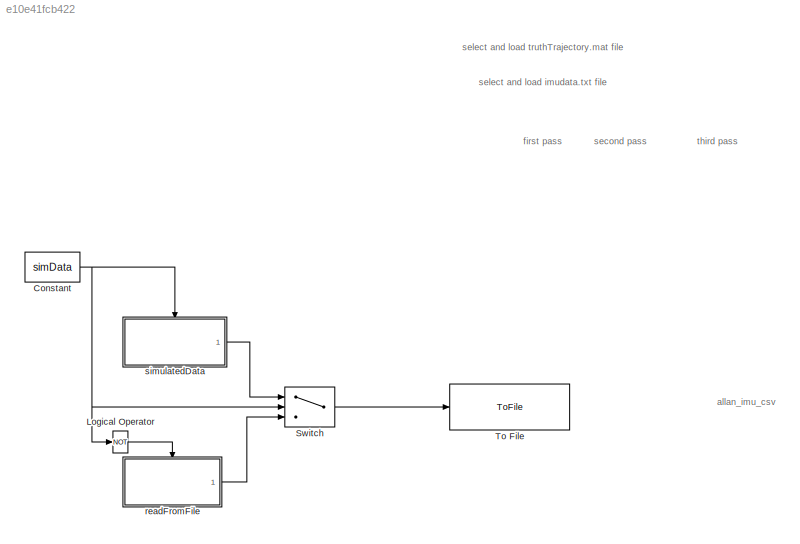
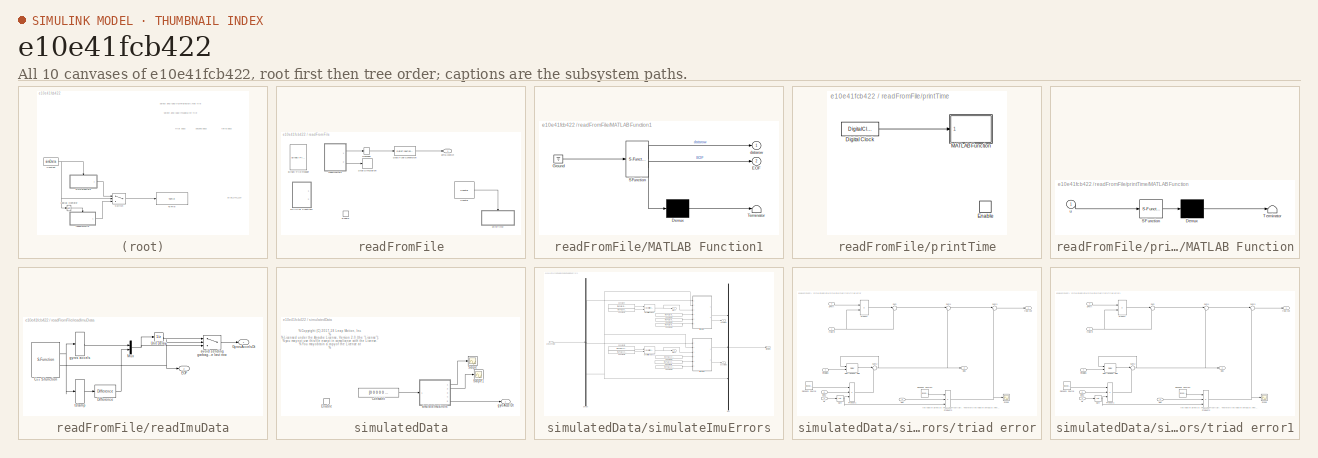
[diagram: thumbnail index - all 10 canvases of the model, root first then tree order]
MODEL slx_e10e41fcb422
KIND model
CONFIG AbsTol = auto
CONFIG EnableMultiTasking = off
CONFIG FixedStep = 1/Fs
CONFIG MaxStep = auto
CONFIG MinStep = auto
CONFIG PreLoadFcn = modelDef = getModelDef();\nload VINS_bus_definitions.mat;\n\nFs = 1125;  % nominal IMU sampling rate (Hz)\n\ngyroCalBiases = [0;0;0];\ngyroCalMatrix = eye(3);\ngyroGsensMatrix = zeros(3,3);\n\naccelCalBiases = [0;0;0];\naccelCalMatrix = eye(3);\n\nimuPar = getImuPar('lmvpUncalibrated');\n\nlastUsedMgyr = zeros(3,3);\n\nsimData = true;\n\n
CONFIG RelTol = 1e-3
CONFIG SampleTimeConstraint = Unconstrained
CONFIG Solver = FixedStepDiscrete
CONFIG SolverName = FixedStepDiscrete
CONFIG StartTime = 0.0
CONFIG StopTime = inf
BLOCK [Constant] Constant
  Value = simData
BLOCK [Logic] Logical Operator
  AllPortsSameDT = off
  IconShape = distinctive
  Operator = NOT
  OutDataTypeStr = boolean
  Ports = [1, 1]
BLOCK [Switch] Switch
  Criteria = u2 > Threshold
  InputSameDT = off
  SaturateOnIntegerOverflow = off
  Threshold = 0.5
BLOCK [ToFile] To File
  Filename = simImuData.mat
  MatrixName = simImuData
  Ports = [1]
BLOCK [SubSystem] readFromFile
  Ports = [0, 1, 1]
  RequestExecContextInheritance = off
BLOCK [Reference] readFromFile/Binary File Reader  REF=dspsrcs4/Binary File Reader
  Commented = on
  Ports = [0, 2]
  SourceBlock = dspsrcs4/Binary File Reader
  SourceProductBaseCode = DS
  SourceProductName = DSP System Toolbox
  SourceType = dsp.simulink.BinaryFileReader
BLOCK [Reference] readFromFile/Counter  REF=dspswit3/Counter
  Ports = [0, 1]
  SourceBlock = dspswit3/Counter
  SourceProductBaseCode = DS
  SourceProductName = DSP System Toolbox
  SourceType = Counter
BLOCK [DataTypeConversion] readFromFile/Data Type Conversion
  OutDataTypeStr = double
  RndMeth = Floor
  SaturateOnIntegerOverflow = off
BLOCK [EnablePort] readFromFile/Enable
  Ports = []
BLOCK [SubSystem] readFromFile/MATLAB Function1
  Commented = on
  ErrorFcn = Stateflow.Translate.translate
  PermitHierarchicalResolution = ExplicitOnly
  Ports = [0, 2]
  RequestExecContextInheritance = off
  SFBlockType = MATLAB Function
  TreatAsAtomicUnit = on
BLOCK [Demux] readFromFile/MATLAB Function1/ Demux 
  Outputs = 1
  Ports = [1, 1]
BLOCK [Ground] readFromFile/MATLAB Function1/ Ground 
BLOCK [S-Function] readFromFile/MATLAB Function1/ SFunction 
  EnableBusSupport = off
  FunctionName = sf_sfun
  PortCounts = [1 3]
  Ports = [1, 3]
  SFcnIsStateOwnerBlock = off
  SFunctionDeploymentMode = off
  Tag = Stateflow S-Function testAllanVar 18
BLOCK [Terminator] readFromFile/MATLAB Function1/ Terminator 
BLOCK [Outport] readFromFile/MATLAB Function1/EOF
  IconDisplay = Port number
  Port = 2
BLOCK [Outport] readFromFile/MATLAB Function1/datarow
  IconDisplay = Port number
BLOCK [Reshape] readFromFile/Reshape
  OutputDimensionality = Column vector (2-D)
  Ports = [1, 1]
BLOCK [Stop] readFromFile/Stop Simulation
BLOCK [Outport] readFromFile/gyroAccelDt
  IconDisplay = Port number
BLOCK [SubSystem] readFromFile/printTime
  Ports = [0, 0, 1]
  RequestExecContextInheritance = off
BLOCK [DigitalClock] readFromFile/printTime/Digital Clock
  SampleTime = 1/Fs
BLOCK [EnablePort] readFromFile/printTime/Enable
  Ports = []
BLOCK [SubSystem] readFromFile/printTime/MATLAB Function
  ErrorFcn = Stateflow.Translate.translate
  PermitHierarchicalResolution = ExplicitOnly
  Ports = [1]
  RequestExecContextInheritance = off
  SFBlockType = MATLAB Function
  TreatAsAtomicUnit = on
BLOCK [Demux] readFromFile/printTime/MATLAB Function/ Demux 
  Outputs = 1
  Ports = [1, 1]
BLOCK [S-Function] readFromFile/printTime/MATLAB Function/ SFunction 
  EnableBusSupport = off
  FunctionName = sf_sfun
  PortCounts = [1 1]
  Ports = [1, 1]
  SFcnIsStateOwnerBlock = off
  SFunctionDeploymentMode = off
  Tag = Stateflow S-Function testAllanVar 11
BLOCK [Terminator] readFromFile/printTime/MATLAB Function/ Terminator 
BLOCK [Inport] readFromFile/printTime/MATLAB Function/u
  IconDisplay = Port number
BLOCK [SubSystem] readFromFile/readImuData
  Ports = [0, 2]
  RequestExecContextInheritance = off
BLOCK [S-Function] readFromFile/readImuData/C++ S-function
  EnableBusSupport = off
  FunctionName = readImuData
  Parameters = 1/Fs
  Ports = [0, 2]
  SFcnIsStateOwnerBlock = off
  SFunctionDeploymentMode = off
BLOCK [Reference] readFromFile/readImuData/Difference  REF=simulink/Discrete/Difference
  Ports = [1, 1]
  SourceBlock = simulink/Discrete/Difference
  SourceProductBaseCode = SL
  SourceProductName = Simulink
  SourceType = Difference
BLOCK [Outport] readFromFile/readImuData/EOF
  IconDisplay = Port number
  Port = 2
BLOCK [Outport] readFromFile/readImuData/GyrosAccelsDt
  IconDisplay = Port number
BLOCK [Mux] readFromFile/readImuData/Mux
  DisplayOption = bar
  Inputs = 2
  Ports = [2, 1]
BLOCK [UnitDelay] readFromFile/readImuData/Unit Delay
  InputProcessing = Elements as channels (sample based)
  SampleTime = -1
BLOCK [Switch] readFromFile/readImuData/avoid sending garbage on the last row
  Criteria = u2 > Threshold
  InputSameDT = off
  SaturateOnIntegerOverflow = off
  Threshold = 0.5
BLOCK [Selector] readFromFile/readImuData/gyros accels
  IndexOptions = Index vector (dialog)
  Indices = [4:9]
  InputPortWidth = 10
  OutputSizes = 1
  Ports = [1, 1]
BLOCK [Selector] readFromFile/readImuData/tstamp
  IndexOptions = Index vector (dialog)
  Indices = 3
  InputPortWidth = 10
  OutputSizes = 1
  Ports = [1, 1]
BLOCK [SubSystem] simulatedData
  Ports = [0, 1, 1]
  RequestExecContextInheritance = off
BLOCK [Constant] simulatedData/Constant
  SampleTime = 1/Fs
  Value = [0 0 0 0 0 -9.80665 1/Fs]
BLOCK [EnablePort] simulatedData/Enable
  Ports = []
BLOCK [Scope] simulatedData/Scope
  Floating = off
  NumInputPorts = 1
  Ports = [1]
  ScopeSpecificationString = Simulink.scopes.TimeScopeBlockCfg('CurrentConfiguration', extmgr.ConfigurationSet(extmgr.Configuration('Core','General UI',true),extmgr.Configuration('Core','Source UI',true),extmgr.Configuration('Sources','WiredSimulink',true,'DataLoggingVariableName','ScopeData2'),extmgr.Configuration('Visuals','Time Domain',true,'SerializedDisplays',{struct('MinYLimReal','-0.00711','MaxYLimReal','0.01722','YLab...<+1472ch>
BLOCK [Scope] simulatedData/Scope1
  Floating = off
  NumInputPorts = 1
  Ports = [1]
  ScopeSpecificationString = Simulink.scopes.TimeScopeBlockCfg('CurrentConfiguration', extmgr.ConfigurationSet(extmgr.Configuration('Core','General UI',true),extmgr.Configuration('Core','Source UI',true),extmgr.Configuration('Sources','WiredSimulink',true),extmgr.Configuration('Visuals','Time Domain',true,'SerializedDisplays',{struct('MinYLimReal','-0.00711','MaxYLimReal','0.01722','YLabelReal','','MinYLimMag','0.00000','MaxY...<+1433ch>
BLOCK [Outport] simulatedData/gyroAccelDt 
  IconDisplay = Port number
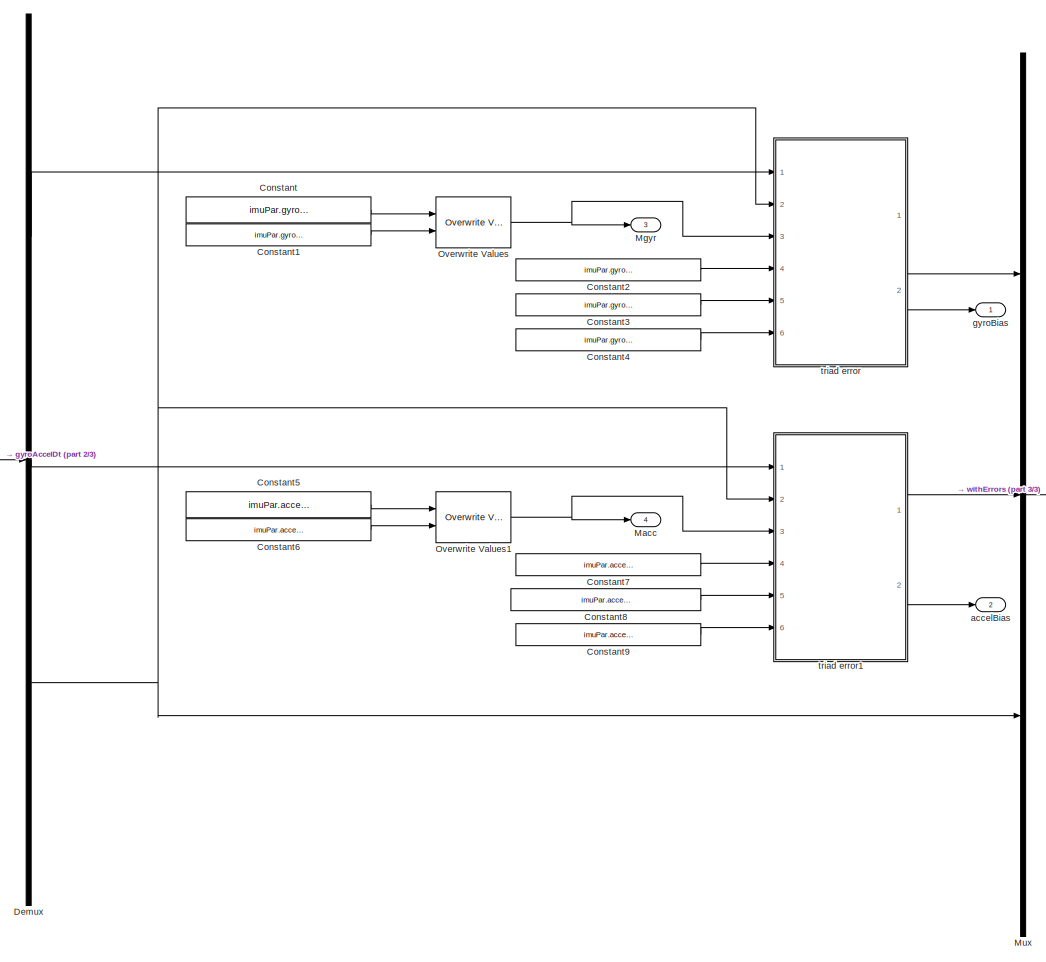
[diagram: simulatedData/simulateImuErrors - part 1/3, center side, full height]
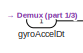
[diagram: simulatedData/simulateImuErrors - part 2/3, middle left region]
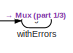
[diagram: simulatedData/simulateImuErrors - part 3/3, middle right region]
BLOCK [SubSystem] simulatedData/simulateImuErrors
  Ports = [1, 5]
  RequestExecContextInheritance = off
  TreatAsAtomicUnit = on
BLOCK [Constant] simulatedData/simulateImuErrors/Constant
  Value = imuPar.gyroAlignUncert * randn(3,3)
BLOCK [Constant] simulatedData/simulateImuErrors/Constant1
  Value = imuPar.gyroScaleUncert*randn(3,1)
BLOCK [Constant] simulatedData/simulateImuErrors/Constant2
  Value = imuPar.gyroBiasUncert*randn(3,1)
  VectorParams1D = off
BLOCK [Constant] simulatedData/simulateImuErrors/Constant3
  Value = imuPar.gyroBrwRadPerSecPerRtSec
BLOCK [Constant] simulatedData/simulateImuErrors/Constant4
  Value = imuPar.gyroArwRadPerRtSec
BLOCK [Constant] simulatedData/simulateImuErrors/Constant5
  Value = imuPar.accelAlignUncert * randn(3,3)
BLOCK [Constant] simulatedData/simulateImuErrors/Constant6
  Value = imuPar.accelScaleUncert*randn(3,1)
BLOCK [Constant] simulatedData/simulateImuErrors/Constant7
  Value = imuPar.accelBiasUncert*randn(3,1)
  VectorParams1D = off
BLOCK [Constant] simulatedData/simulateImuErrors/Constant8
  Value = imuPar.accelBrwMetersPerSec2PerRtSec
BLOCK [Constant] simulatedData/simulateImuErrors/Constant9
  Value = imuPar.accelVrwMetersPerSecPerRtSec
BLOCK [Demux] simulatedData/simulateImuErrors/Demux
  DisplayOption = bar
  Outputs = [3 3 1]
  Ports = [1, 3]
BLOCK [Outport] simulatedData/simulateImuErrors/Macc
  IconDisplay = Port number
  Port = 4
BLOCK [Outport] simulatedData/simulateImuErrors/Mgyr
  IconDisplay = Port number
  Port = 3
BLOCK [Mux] simulatedData/simulateImuErrors/Mux
  DisplayOption = bar
  Inputs = 3
  Ports = [3, 1]
BLOCK [Reference] simulatedData/simulateImuErrors/Overwrite Values  REF=dspmtrx3/Overwrite Values
  Ports = [2, 1]
  SourceBlock = dspmtrx3/Overwrite Values
  SourceProductBaseCode = DS
  SourceProductName = DSP System Toolbox
  SourceType = Overwrite Values
BLOCK [Reference] simulatedData/simulateImuErrors/Overwrite Values1  REF=dspmtrx3/Overwrite Values
  Ports = [2, 1]
  SourceBlock = dspmtrx3/Overwrite Values
  SourceProductBaseCode = DS
  SourceProductName = DSP System Toolbox
  SourceType = Overwrite Values
BLOCK [Outport] simulatedData/simulateImuErrors/accelBias
  IconDisplay = Port number
  Port = 2
BLOCK [Inport] simulatedData/simulateImuErrors/gyroAccelDt
  IconDisplay = Port number
BLOCK [Outport] simulatedData/simulateImuErrors/gyroBias
  IconDisplay = Port number
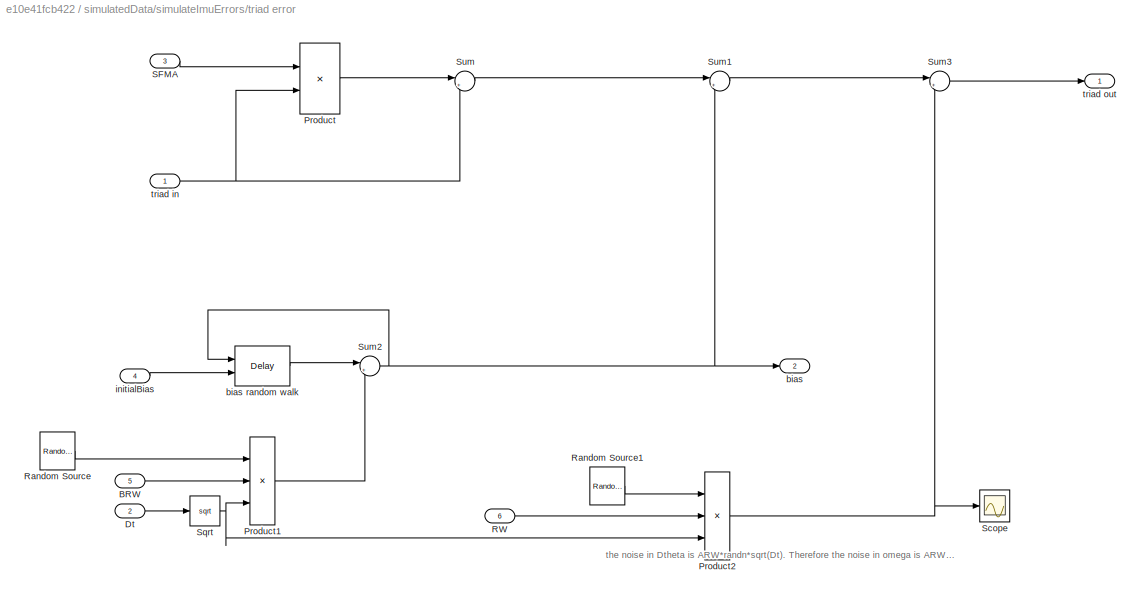
BLOCK [SubSystem] simulatedData/simulateImuErrors/triad error
  Ports = [6, 2]
  RequestExecContextInheritance = off
  TreatAsAtomicUnit = on
BLOCK [Inport] simulatedData/simulateImuErrors/triad error/BRW
  IconDisplay = Port number
  Port = 5
BLOCK [Inport] simulatedData/simulateImuErrors/triad error/Dt
  IconDisplay = Port number
  Port = 2
BLOCK [Product] simulatedData/simulateImuErrors/triad error/Product
  InputSameDT = off
  Multiplication = Matrix(*)
  OutDataTypeStr = Inherit: Inherit via internal rule
  Ports = [2, 1]
  RndMeth = Floor
  SaturateOnIntegerOverflow = off
BLOCK [Product] simulatedData/simulateImuErrors/triad error/Product1
  InputSameDT = off
  Inputs = 3
  OutDataTypeStr = Inherit: Inherit via internal rule
  Ports = [3, 1]
  RndMeth = Floor
  SaturateOnIntegerOverflow = off
BLOCK [Product] simulatedData/simulateImuErrors/triad error/Product2
  InputSameDT = off
  Inputs = **/
  OutDataTypeStr = Inherit: Inherit via internal rule
  Ports = [3, 1]
  RndMeth = Floor
  SaturateOnIntegerOverflow = off
BLOCK [Inport] simulatedData/simulateImuErrors/triad error/RW
  IconDisplay = Port number
  Port = 6
BLOCK [Reference] simulatedData/simulateImuErrors/triad error/Random Source  REF=dspsrcs4/Random
Source
  Ports = [0, 1]
  SourceBlock = dspsrcs4/Random\nSource
  SourceProductBaseCode = DS
  SourceProductName = DSP System Toolbox
  SourceType = Random Source
  UserDataPersistent = on
BLOCK [Reference] simulatedData/simulateImuErrors/triad error/Random Source1  REF=dspsrcs4/Random
Source
  Ports = [0, 1]
  SourceBlock = dspsrcs4/Random\nSource
  SourceProductBaseCode = DS
  SourceProductName = DSP System Toolbox
  SourceType = Random Source
  UserDataPersistent = on
BLOCK [Inport] simulatedData/simulateImuErrors/triad error/SFMA
  IconDisplay = Port number
  Port = 3
BLOCK [Scope] simulatedData/simulateImuErrors/triad error/Scope
  Floating = off
  NumInputPorts = 1
  Ports = [1]
  ScopeSpecificationString = Simulink.scopes.TimeScopeBlockCfg('CurrentConfiguration', extmgr.ConfigurationSet(extmgr.Configuration('Core','General UI',true),extmgr.Configuration('Core','Source UI',true),extmgr.Configuration('Sources','WiredSimulink',true,'DataLoggingVariableName','ScopeData3'),extmgr.Configuration('Visuals','Time Domain',true,'SerializedDisplays',{struct('MinYLimReal','-0.01032','MaxYLimReal','0.01092','YLab...<+1449ch>
BLOCK [Sqrt] simulatedData/simulateImuErrors/triad error/Sqrt
BLOCK [Sum] simulatedData/simulateImuErrors/triad error/Sum
  IconShape = round
  InputSameDT = off
  Inputs = |++
  OutDataTypeStr = Inherit: Inherit via internal rule
  Ports = [2, 1]
  SaturateOnIntegerOverflow = off
BLOCK [Sum] simulatedData/simulateImuErrors/triad error/Sum1
  IconShape = round
  InputSameDT = off
  Inputs = |++
  OutDataTypeStr = Inherit: Inherit via internal rule
  Ports = [2, 1]
  SaturateOnIntegerOverflow = off
BLOCK [Sum] simulatedData/simulateImuErrors/triad error/Sum2
  IconShape = round
  InputSameDT = off
  Inputs = |++
  OutDataTypeStr = Inherit: Inherit via internal rule
  Ports = [2, 1]
  SaturateOnIntegerOverflow = off
BLOCK [Sum] simulatedData/simulateImuErrors/triad error/Sum3
  IconShape = round
  InputSameDT = off
  Inputs = |++
  OutDataTypeStr = Inherit: Inherit via internal rule
  Ports = [2, 1]
  SaturateOnIntegerOverflow = off
BLOCK [Outport] simulatedData/simulateImuErrors/triad error/bias
  IconDisplay = Port number
  Port = 2
BLOCK [Delay] simulatedData/simulateImuErrors/triad error/bias random walk
  DelayLength = 1
  InitialConditionSource = Input port
  InputPortMap = u0,p4
  Ports = [2, 1]
BLOCK [Inport] simulatedData/simulateImuErrors/triad error/initialBias
  IconDisplay = Port number
  Port = 4
BLOCK [Inport] simulatedData/simulateImuErrors/triad error/triad in
  IconDisplay = Port number
BLOCK [Outport] simulatedData/simulateImuErrors/triad error/triad out
  IconDisplay = Port number
BLOCK [SubSystem] simulatedData/simulateImuErrors/triad error1
  Ports = [6, 2]
  RequestExecContextInheritance = off
  TreatAsAtomicUnit = on
BLOCK [Inport] simulatedData/simulateImuErrors/triad error1/BRW
  IconDisplay = Port number
  Port = 5
BLOCK [Inport] simulatedData/simulateImuErrors/triad error1/Dt
  IconDisplay = Port number
  Port = 2
BLOCK [Product] simulatedData/simulateImuErrors/triad error1/Product
  InputSameDT = off
  Multiplication = Matrix(*)
  OutDataTypeStr = Inherit: Inherit via internal rule
  Ports = [2, 1]
  RndMeth = Floor
  SaturateOnIntegerOverflow = off
BLOCK [Product] simulatedData/simulateImuErrors/triad error1/Product1
  InputSameDT = off
  Inputs = 3
  OutDataTypeStr = Inherit: Inherit via internal rule
  Ports = [3, 1]
  RndMeth = Floor
  SaturateOnIntegerOverflow = off
BLOCK [Product] simulatedData/simulateImuErrors/triad error1/Product2
  InputSameDT = off
  Inputs = **/
  OutDataTypeStr = Inherit: Inherit via internal rule
  Ports = [3, 1]
  RndMeth = Floor
  SaturateOnIntegerOverflow = off
BLOCK [Inport] simulatedData/simulateImuErrors/triad error1/RW
  IconDisplay = Port number
  Port = 6
BLOCK [Reference] simulatedData/simulateImuErrors/triad error1/Random Source  REF=dspsrcs4/Random
Source
  Ports = [0, 1]
  SourceBlock = dspsrcs4/Random\nSource
  SourceProductBaseCode = DS
  SourceProductName = DSP System Toolbox
  SourceType = Random Source
  UserDataPersistent = on
BLOCK [Reference] simulatedData/simulateImuErrors/triad error1/Random Source1  REF=dspsrcs4/Random
Source
  Ports = [0, 1]
  SourceBlock = dspsrcs4/Random\nSource
  SourceProductBaseCode = DS
  SourceProductName = DSP System Toolbox
  SourceType = Random Source
  UserDataPersistent = on
BLOCK [Inport] simulatedData/simulateImuErrors/triad error1/SFMA
  IconDisplay = Port number
  Port = 3
BLOCK [Scope] simulatedData/simulateImuErrors/triad error1/Scope
  Floating = off
  NumInputPorts = 1
  Ports = [1]
  ScopeSpecificationString = Simulink.scopes.TimeScopeBlockCfg('CurrentConfiguration', extmgr.ConfigurationSet(extmgr.Configuration('Core','General UI',true),extmgr.Configuration('Core','Source UI',true),extmgr.Configuration('Sources','WiredSimulink',true,'DataLoggingVariableName','ScopeData3'),extmgr.Configuration('Visuals','Time Domain',true,'SerializedDisplays',{struct('MinYLimReal','-0.03085','MaxYLimReal','0.03213','YLab...<+1449ch>
BLOCK [Sqrt] simulatedData/simulateImuErrors/triad error1/Sqrt
BLOCK [Sum] simulatedData/simulateImuErrors/triad error1/Sum
  IconShape = round
  InputSameDT = off
  Inputs = |++
  OutDataTypeStr = Inherit: Inherit via internal rule
  Ports = [2, 1]
  SaturateOnIntegerOverflow = off
BLOCK [Sum] simulatedData/simulateImuErrors/triad error1/Sum1
  IconShape = round
  InputSameDT = off
  Inputs = |++
  OutDataTypeStr = Inherit: Inherit via internal rule
  Ports = [2, 1]
  SaturateOnIntegerOverflow = off
BLOCK [Sum] simulatedData/simulateImuErrors/triad error1/Sum2
  IconShape = round
  InputSameDT = off
  Inputs = |++
  OutDataTypeStr = Inherit: Inherit via internal rule
  Ports = [2, 1]
  SaturateOnIntegerOverflow = off
BLOCK [Sum] simulatedData/simulateImuErrors/triad error1/Sum3
  IconShape = round
  InputSameDT = off
  Inputs = |++
  OutDataTypeStr = Inherit: Inherit via internal rule
  Ports = [2, 1]
  SaturateOnIntegerOverflow = off
BLOCK [Outport] simulatedData/simulateImuErrors/triad error1/bias
  IconDisplay = Port number
  Port = 2
BLOCK [Delay] simulatedData/simulateImuErrors/triad error1/bias random walk
  DelayLength = 1
  InitialConditionSource = Input port
  InputPortMap = u0,p4
  Ports = [2, 1]
BLOCK [Inport] simulatedData/simulateImuErrors/triad error1/initialBias
  IconDisplay = Port number
  Port = 4
BLOCK [Inport] simulatedData/simulateImuErrors/triad error1/triad in
  IconDisplay = Port number
BLOCK [Outport] simulatedData/simulateImuErrors/triad error1/triad out
  IconDisplay = Port number
BLOCK [Outport] simulatedData/simulateImuErrors/withErrors
  IconDisplay = Port number
  Port = 5
ANNOTATION (root): allan_imu_csv
ANNOTATION (root): first pass
ANNOTATION (root): second pass
ANNOTATION (root): select and load imudata.txt file
ANNOTATION (root): select and load truthTrajectory.mat file
ANNOTATION (root): third pass
ANNOTATION simulatedData: % <copyright redacted>
ANNOTATION simulatedData/simulateImuErrors/triad error: the noise in Dtheta is ARW*randn*sqrt(Dt). Therefore the noise in omega is ARW*randn/sqrt(Dt).
ANNOTATION simulatedData/simulateImuErrors/triad error1: the noise in Dtheta is ARW*randn*sqrt(Dt). Therefore the noise in omega is ARW*randn/sqrt(Dt).
NET Constant:1 -> Logical Operator:1, Switch:2, simulatedData:enable
LINE Logical Operator:1 -> readFromFile:enable
LINE Switch:1 -> To File:1
LINE readFromFile/Counter:1 -> readFromFile/printTime:enable
LINE readFromFile/Data Type Conversion:1 -> readFromFile/gyroAccelDt:1
LINE readFromFile/Reshape:1 -> readFromFile/Data Type Conversion:1
LINE readFromFile/printTime/Digital Clock:1 -> readFromFile/printTime/MATLAB Function:1
NET readFromFile/readImuData/C++ S-function:1 -> readFromFile/readImuData/gyros accels:1, readFromFile/readImuData/tstamp:1
NET readFromFile/readImuData/C++ S-function:2 -> readFromFile/readImuData/EOF:1, readFromFile/readImuData/avoid sending garbage on the last row:2
LINE readFromFile/readImuData/Difference:1 -> readFromFile/readImuData/Mux:2
NET readFromFile/readImuData/Mux:1 -> readFromFile/readImuData/Unit Delay:1, readFromFile/readImuData/avoid sending garbage on the last row:3
LINE readFromFile/readImuData/Unit Delay:1 -> readFromFile/readImuData/avoid sending garbage on the last row:1
LINE readFromFile/readImuData/avoid sending garbage on the last row:1 -> readFromFile/readImuData/GyrosAccelsDt:1
LINE readFromFile/readImuData/gyros accels:1 -> readFromFile/readImuData/Mux:1
LINE readFromFile/readImuData/tstamp:1 -> readFromFile/readImuData/Difference:1
LINE readFromFile/readImuData:1 -> readFromFile/Reshape:1
LINE readFromFile/readImuData:2 -> readFromFile/Stop Simulation:1
LINE readFromFile:1 -> Switch:3
LINE simulatedData/Constant:1 -> simulatedData/simulateImuErrors:1
LINE simulatedData/simulateImuErrors/Constant1:1 -> simulatedData/simulateImuErrors/Overwrite Values:2
LINE simulatedData/simulateImuErrors/Constant2:1 -> simulatedData/simulateImuErrors/triad error:4
LINE simulatedData/simulateImuErrors/Constant3:1 -> simulatedData/simulateImuErrors/triad error:5
LINE simulatedData/simulateImuErrors/Constant4:1 -> simulatedData/simulateImuErrors/triad error:6
LINE simulatedData/simulateImuErrors/Constant5:1 -> simulatedData/simulateImuErrors/Overwrite Values1:1
LINE simulatedData/simulateImuErrors/Constant6:1 -> simulatedData/simulateImuErrors/Overwrite Values1:2
LINE simulatedData/simulateImuErrors/Constant7:1 -> simulatedData/simulateImuErrors/triad error1:4
LINE simulatedData/simulateImuErrors/Constant8:1 -> simulatedData/simulateImuErrors/triad error1:5
LINE simulatedData/simulateImuErrors/Constant9:1 -> simulatedData/simulateImuErrors/triad error1:6
LINE simulatedData/simulateImuErrors/Constant:1 -> simulatedData/simulateImuErrors/Overwrite Values:1
LINE simulatedData/simulateImuErrors/Demux:1 -> simulatedData/simulateImuErrors/triad error:1
LINE simulatedData/simulateImuErrors/Demux:2 -> simulatedData/simulateImuErrors/triad error1:1
NET simulatedData/simulateImuErrors/Demux:3 -> simulatedData/simulateImuErrors/Mux:3, simulatedData/simulateImuErrors/triad error1:2, simulatedData/simulateImuErrors/triad error:2
LINE simulatedData/simulateImuErrors/Mux:1 -> simulatedData/simulateImuErrors/withErrors:1
NET simulatedData/simulateImuErrors/Overwrite Values1:1 -> simulatedData/simulateImuErrors/Macc:1, simulatedData/simulateImuErrors/triad error1:3
NET simulatedData/simulateImuErrors/Overwrite Values:1 -> simulatedData/simulateImuErrors/Mgyr:1, simulatedData/simulateImuErrors/triad error:3
LINE simulatedData/simulateImuErrors/gyroAccelDt:1 -> simulatedData/simulateImuErrors/Demux:1
LINE simulatedData/simulateImuErrors/triad error/BRW:1 -> simulatedData/simulateImuErrors/triad error/Product1:2
LINE simulatedData/simulateImuErrors/triad error/Dt:1 -> simulatedData/simulateImuErrors/triad error/Sqrt:1
LINE simulatedData/simulateImuErrors/triad error/Product1:1 -> simulatedData/simulateImuErrors/triad error/Sum2:2
NET simulatedData/simulateImuErrors/triad error/Product2:1 -> simulatedData/simulateImuErrors/triad error/Scope:1, simulatedData/simulateImuErrors/triad error/Sum3:2
LINE simulatedData/simulateImuErrors/triad error/Product:1 -> simulatedData/simulateImuErrors/triad error/Sum:1
LINE simulatedData/simulateImuErrors/triad error/RW:1 -> simulatedData/simulateImuErrors/triad error/Product2:2
LINE simulatedData/simulateImuErrors/triad error/Random Source1:1 -> simulatedData/simulateImuErrors/triad error/Product2:1
LINE simulatedData/simulateImuErrors/triad error/Random Source:1 -> simulatedData/simulateImuErrors/triad error/Product1:1
LINE simulatedData/simulateImuErrors/triad error/SFMA:1 -> simulatedData/simulateImuErrors/triad error/Product:1
NET simulatedData/simulateImuErrors/triad error/Sqrt:1 -> simulatedData/simulateImuErrors/triad error/Product1:3, simulatedData/simulateImuErrors/triad error/Product2:3
LINE simulatedData/simulateImuErrors/triad error/Sum1:1 -> simulatedData/simulateImuErrors/triad error/Sum3:1
NET simulatedData/simulateImuErrors/triad error/Sum2:1 -> simulatedData/simulateImuErrors/triad error/Sum1:2, simulatedData/simulateImuErrors/triad error/bias random walk:1, simulatedData/simulateImuErrors/triad error/bias:1
LINE simulatedData/simulateImuErrors/triad error/Sum3:1 -> simulatedData/simulateImuErrors/triad error/triad out:1
LINE simulatedData/simulateImuErrors/triad error/Sum:1 -> simulatedData/simulateImuErrors/triad error/Sum1:1
LINE simulatedData/simulateImuErrors/triad error/bias random walk:1 -> simulatedData/simulateImuErrors/triad error/Sum2:1
LINE simulatedData/simulateImuErrors/triad error/initialBias:1 -> simulatedData/simulateImuErrors/triad error/bias random walk:2
NET simulatedData/simulateImuErrors/triad error/triad in:1 -> simulatedData/simulateImuErrors/triad error/Product:2, simulatedData/simulateImuErrors/triad error/Sum:2
LINE simulatedData/simulateImuErrors/triad error1/BRW:1 -> simulatedData/simulateImuErrors/triad error1/Product1:2
LINE simulatedData/simulateImuErrors/triad error1/Dt:1 -> simulatedData/simulateImuErrors/triad error1/Sqrt:1
LINE simulatedData/simulateImuErrors/triad error1/Product1:1 -> simulatedData/simulateImuErrors/triad error1/Sum2:2
NET simulatedData/simulateImuErrors/triad error1/Product2:1 -> simulatedData/simulateImuErrors/triad error1/Scope:1, simulatedData/simulateImuErrors/triad error1/Sum3:2
LINE simulatedData/simulateImuErrors/triad error1/Product:1 -> simulatedData/simulateImuErrors/triad error1/Sum:1
LINE simulatedData/simulateImuErrors/triad error1/RW:1 -> simulatedData/simulateImuErrors/triad error1/Product2:2
LINE simulatedData/simulateImuErrors/triad error1/Random Source1:1 -> simulatedData/simulateImuErrors/triad error1/Product2:1
LINE simulatedData/simulateImuErrors/triad error1/Random Source:1 -> simulatedData/simulateImuErrors/triad error1/Product1:1
LINE simulatedData/simulateImuErrors/triad error1/SFMA:1 -> simulatedData/simulateImuErrors/triad error1/Product:1
NET simulatedData/simulateImuErrors/triad error1/Sqrt:1 -> simulatedData/simulateImuErrors/triad error1/Product1:3, simulatedData/simulateImuErrors/triad error1/Product2:3
LINE simulatedData/simulateImuErrors/triad error1/Sum1:1 -> simulatedData/simulateImuErrors/triad error1/Sum3:1
NET simulatedData/simulateImuErrors/triad error1/Sum2:1 -> simulatedData/simulateImuErrors/triad error1/Sum1:2, simulatedData/simulateImuErrors/triad error1/bias random walk:1, simulatedData/simulateImuErrors/triad error1/bias:1
LINE simulatedData/simulateImuErrors/triad error1/Sum3:1 -> simulatedData/simulateImuErrors/triad error1/triad out:1
LINE simulatedData/simulateImuErrors/triad error1/Sum:1 -> simulatedData/simulateImuErrors/triad error1/Sum1:1
LINE simulatedData/simulateImuErrors/triad error1/bias random walk:1 -> simulatedData/simulateImuErrors/triad error1/Sum2:1
LINE simulatedData/simulateImuErrors/triad error1/initialBias:1 -> simulatedData/simulateImuErrors/triad error1/bias random walk:2
NET simulatedData/simulateImuErrors/triad error1/triad in:1 -> simulatedData/simulateImuErrors/triad error1/Product:2, simulatedData/simulateImuErrors/triad error1/Sum:2
LINE simulatedData/simulateImuErrors/triad error1:1 -> simulatedData/simulateImuErrors/Mux:2
LINE simulatedData/simulateImuErrors/triad error1:2 -> simulatedData/simulateImuErrors/accelBias:1
LINE simulatedData/simulateImuErrors/triad error:1 -> simulatedData/simulateImuErrors/Mux:1
LINE simulatedData/simulateImuErrors/triad error:2 -> simulatedData/simulateImuErrors/gyroBias:1
LINE simulatedData/simulateImuErrors:1 -> simulatedData/Scope:1
LINE simulatedData/simulateImuErrors:2 -> simulatedData/Scope1:1
LINE simulatedData/simulateImuErrors:5 -> simulatedData/gyroAccelDt :1
LINE simulatedData:1 -> Switch:1
note: NET lines group one-source signal fan-out (src -> all destinations, sorted); 1:1 wires keep LINE
CHART readFromFile/printTime/MATLAB Function states=1 transitions=1
  STATE_LABEL 'eML_blk_kernel()'
  STATE_LABEL 'SCRIPT:\nfunction  printTime(u)\n%#codegen\n\n% using fileId = 1  only generates a printf in the generated code\n% fileId = 2 also causes prints in the matlab console\n\nfprintf(1, "\\r %f", u);'
CHART readFromFile/MATLAB Function1 states=1 transitions=1
  STATE_LABEL 'eML_blk_kernel()'
  STATE_LABEL "SCRIPT:\nfunction [datarow, EOF] = readLineAscii()\n\npersistent data data2 nrows row\n\nif isempty(data)\n    % row format = # SeqID, DeviceID, timestamp (sec), gyroXYZ (rad/sec), accelXYZ (m/s^2), temperature (degC)\n    coder.varsize('data', [500000, 10], [1 0]);  % ten columns,  up to 200k rows\n    data = load('imudata.txt', '-ascii'); \n    \n    validTimestamp = data(:,3) > 0.001;\n    data2 = data(va...<+292ch>"
